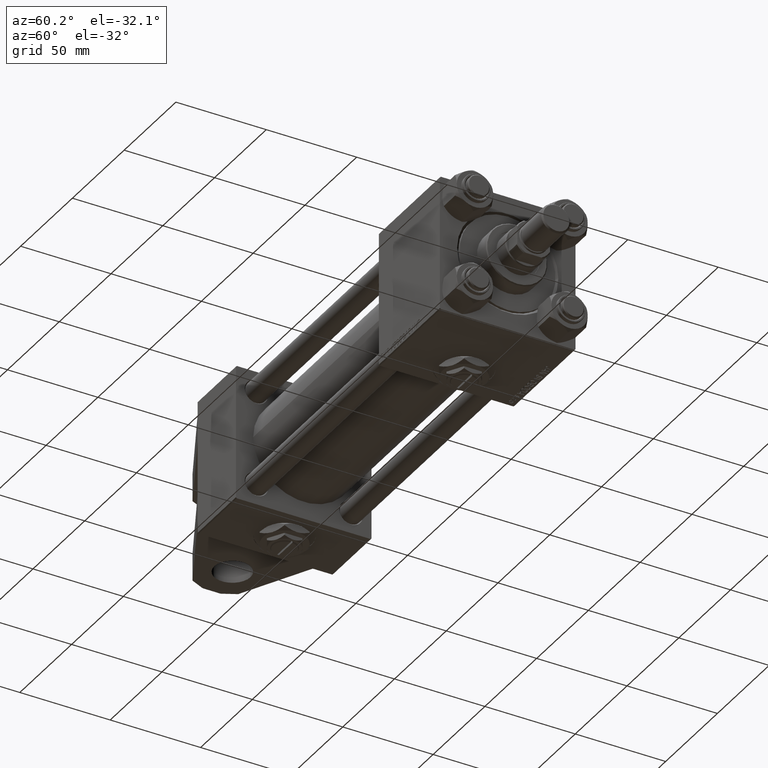
[diagram: clean part render]
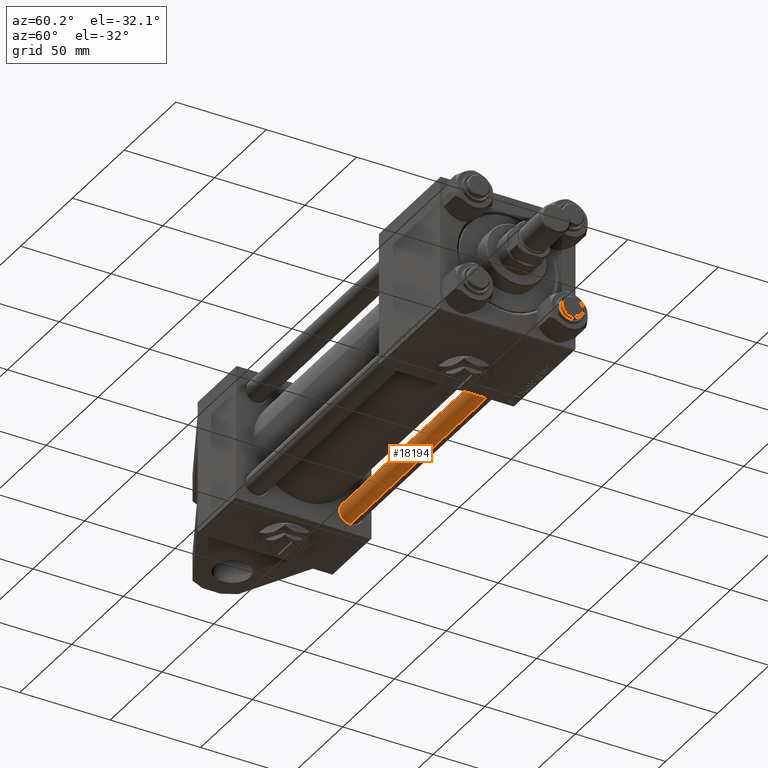
[diagram: same view with one face highlighted and labeled with its STEP entity id]
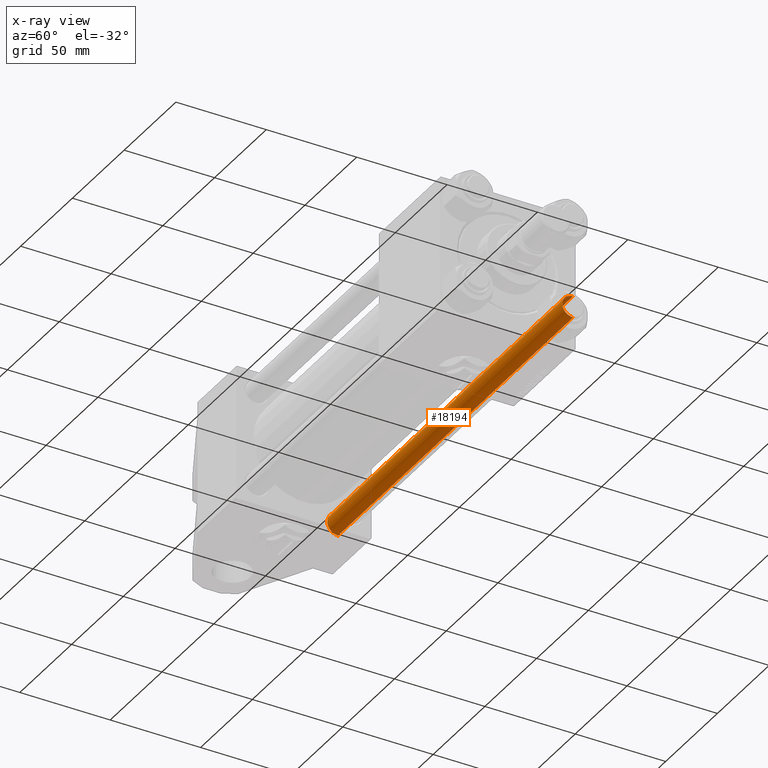
[diagram: x-ray of the same camera — body ghosted, the highlighted face saturated]
A machine part, auxiliary view. The second image highlights one B-rep face of the part: STEP entity #18194.
The next image is the same camera in x-ray: the body ghosted, the highlighted face saturated — about 0% of this face is hidden behind the body in this view.
In plain terms, the highlighted cylindrical surface (edge-blend (fillet) strip) has radius 6 mm, axis along (1, -0, -0).
Its self-contained STEP definition (entity closure, byte-faithful):
#394 = VERTEX_POINT ( 'NONE', #45058 ) ;
#1979 = EDGE_CURVE ( 'NONE', #25581, #31529, #51469, .T. ) ;
#5654 = DIRECTION ( 'NONE',  ( 1.000000000000000000, 0.000000000000000000, 0.000000000000000000 ) ) ;
#8231 = ORIENTED_EDGE ( 'NONE', *, *, #30016, .T. ) ;
#8364 = ORIENTED_EDGE ( 'NONE', *, *, #10932, .T. ) ;
#8731 = ORIENTED_EDGE ( 'NONE', *, *, #24014, .T. ) ;
#10932 = EDGE_CURVE ( 'NONE', #25581, #394, #24033, .T. ) ;
#12396 = CIRCLE ( 'NONE', #37666, 6.000000000000000888 ) ;
#12918 = CARTESIAN_POINT ( 'NONE',  ( 0.000000000000000000, 0.000000000000000000, 0.5000000000001947331 ) ) ;
#18194 = ADVANCED_FACE ( 'NONE', ( #21785 ), #25747, .T. ) ;
#19871 = VECTOR ( 'NONE', #27879, 1000.000000000000000 ) ;
#20589 = DIRECTION ( 'NONE',  ( 1.000000000000000000, 0.000000000000000000, 0.000000000000000000 ) ) ;
#21313 = VERTEX_POINT ( 'NONE', #24977 ) ;
#21785 = FACE_OUTER_BOUND ( 'NONE', #36742, .T. ) ;
#24014 = EDGE_CURVE ( 'NONE', #394, #21313, #35013, .T. ) ;
#24033 = CIRCLE ( 'NONE', #40075, 6.000000000000000888 ) ;
#24977 = CARTESIAN_POINT ( 'NONE',  ( -6.000000000000000888, 0.000000000000000000, 0.5000000000001947331 ) ) ;
#25403 = ORIENTED_EDGE ( 'NONE', *, *, #1979, .F. ) ;
#25581 = VERTEX_POINT ( 'NONE', #47296 ) ;
#25747 = CYLINDRICAL_SURFACE ( 'NONE', #29794, 6.000000000000000888 ) ;
#27879 = DIRECTION ( 'NONE',  ( -0.000000000000000000, -0.000000000000000000, -1.000000000000000000 ) ) ;
#28466 = DIRECTION ( 'NONE',  ( 0.000000000000000000, 0.000000000000000000, -1.000000000000000000 ) ) ;
#29794 = AXIS2_PLACEMENT_3D ( 'NONE', #33651, #41834, #37870 ) ;
#30016 = EDGE_CURVE ( 'NONE', #21313, #31529, #12396, .T. ) ;
#31529 = VERTEX_POINT ( 'NONE', #49476 ) ;
#32192 = DIRECTION ( 'NONE',  ( -0.000000000000000000, -0.000000000000000000, 1.000000000000000000 ) ) ;
#33651 = CARTESIAN_POINT ( 'NONE',  ( 0.000000000000000000, 0.000000000000000000, 228.0000000000000000 ) ) ;
#35013 = LINE ( 'NONE', #51619, #19871 ) ;
#35387 = DIRECTION ( 'NONE',  ( -0.000000000000000000, -0.000000000000000000, -1.000000000000000000 ) ) ;
#36742 = EDGE_LOOP ( 'NONE', ( #25403, #8364, #8731, #8231 ) ) ;
#37666 = AXIS2_PLACEMENT_3D ( 'NONE', #12918, #32192, #20589 ) ;
#37870 = DIRECTION ( 'NONE',  ( -1.000000000000000000, 0.000000000000000000, 0.000000000000000000 ) ) ;
#40075 = AXIS2_PLACEMENT_3D ( 'NONE', #44301, #28466, #5654 ) ;
#41834 = DIRECTION ( 'NONE',  ( -0.000000000000000000, -0.000000000000000000, -1.000000000000000000 ) ) ;
#44301 = CARTESIAN_POINT ( 'NONE',  ( 0.000000000000000000, 0.000000000000000000, 227.5000000000000853 ) ) ;
#45058 = CARTESIAN_POINT ( 'NONE',  ( -6.000000000000000888, 0.000000000000000000, 227.5000000000000853 ) ) ;
#47296 = CARTESIAN_POINT ( 'NONE',  ( 6.000000000000000888, 7.347880794884119736E-16, 227.5000000000000853 ) ) ;
#47793 = CARTESIAN_POINT ( 'NONE',  ( 6.000000000000000888, 7.347880794884119736E-16, 228.0000000000000000 ) ) ;
#49476 = CARTESIAN_POINT ( 'NONE',  ( 6.000000000000000888, 7.347880794884119736E-16, 0.5000000000001947331 ) ) ;
#51469 = LINE ( 'NONE', #47793, #51671 ) ;
#51619 = CARTESIAN_POINT ( 'NONE',  ( -6.000000000000000888, 0.000000000000000000, 228.0000000000000000 ) ) ;
#51671 = VECTOR ( 'NONE', #35387, 1000.000000000000000 ) ;